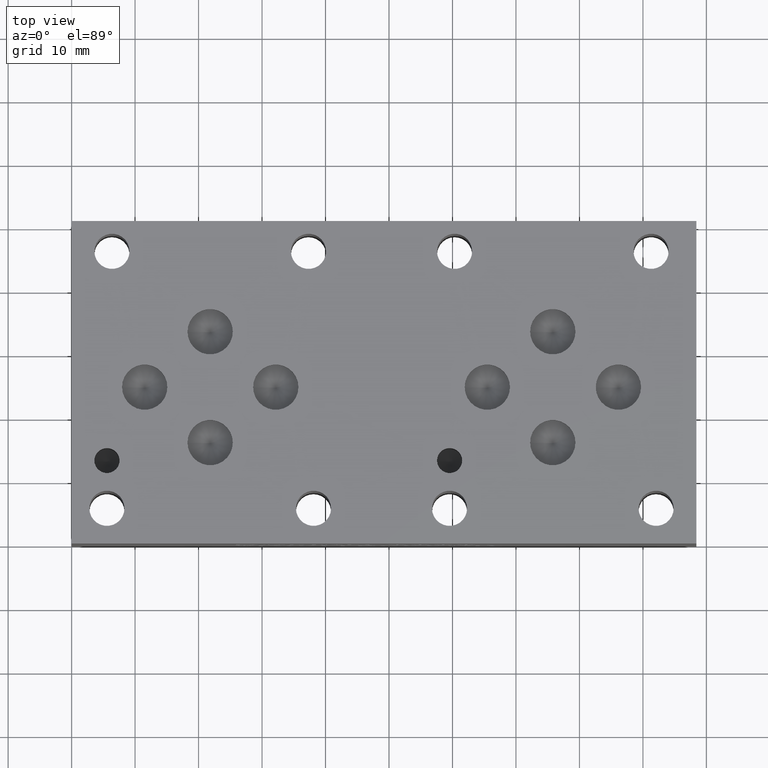
[diagram: clean part render]
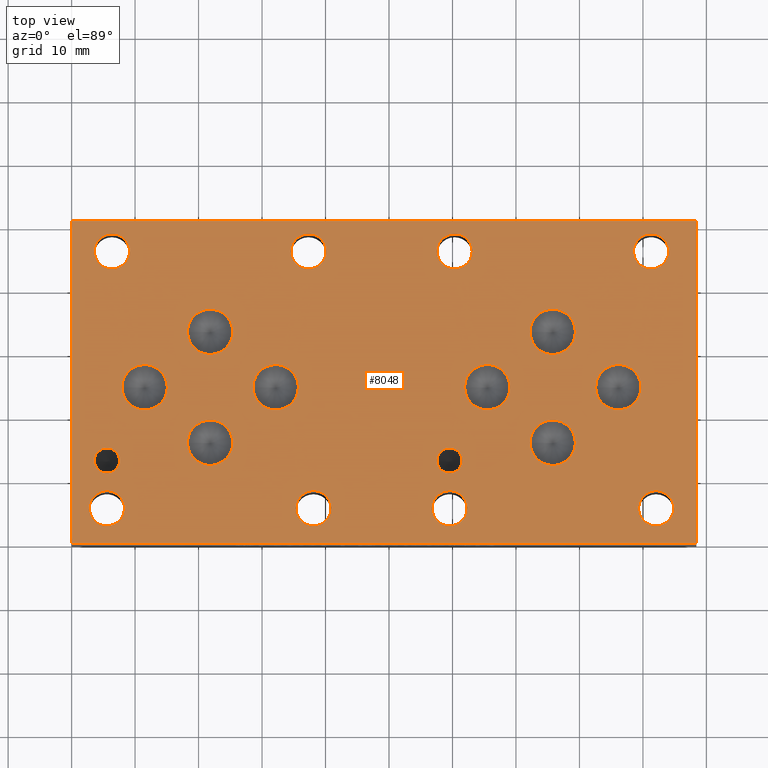
[diagram: same view with one face highlighted and labeled with its STEP entity id]
A machine part, top view. The second image highlights one B-rep face of the part: STEP entity #8048.
In plain terms, the highlighted planar face has unit normal (0, 0, 1).
Its self-contained STEP definition (entity closure, byte-faithful):
#109=CIRCLE('',#8402,2.7686);
#110=CIRCLE('',#8404,2.7686);
#111=CIRCLE('',#8406,2.7686);
#112=CIRCLE('',#8408,2.7686);
#113=CIRCLE('',#8410,2.7686);
#114=CIRCLE('',#8412,2.7686);
#115=CIRCLE('',#8414,2.7686);
#116=CIRCLE('',#8416,2.7686);
#118=CIRCLE('',#8420,3.5687);
#120=CIRCLE('',#8424,3.5687);
#122=CIRCLE('',#8428,3.5687);
#124=CIRCLE('',#8432,3.5687);
#126=CIRCLE('',#8436,3.5687);
#128=CIRCLE('',#8440,3.5687);
#130=CIRCLE('',#8444,3.5687);
#132=CIRCLE('',#8448,3.5687);
#134=CIRCLE('',#8452,1.9812);
#136=CIRCLE('',#8456,1.9812);
#218=FACE_BOUND('',#1445,.T.);
#219=FACE_BOUND('',#1446,.T.);
#220=FACE_BOUND('',#1447,.T.);
#221=FACE_BOUND('',#1448,.T.);
#222=FACE_BOUND('',#1449,.T.);
#223=FACE_BOUND('',#1450,.T.);
#224=FACE_BOUND('',#1451,.T.);
#225=FACE_BOUND('',#1452,.T.);
#226=FACE_BOUND('',#1453,.T.);
#227=FACE_BOUND('',#1454,.T.);
#228=FACE_BOUND('',#1455,.T.);
#229=FACE_BOUND('',#1456,.T.);
#230=FACE_BOUND('',#1457,.T.);
#231=FACE_BOUND('',#1458,.T.);
#232=FACE_BOUND('',#1459,.T.);
#233=FACE_BOUND('',#1460,.T.);
#234=FACE_BOUND('',#1461,.T.);
#235=FACE_BOUND('',#1462,.T.);
#971=FACE_OUTER_BOUND('',#1444,.T.);
#1444=EDGE_LOOP('',(#7034,#7035,#7036,#7037));
#1445=EDGE_LOOP('',(#7038));
#1446=EDGE_LOOP('',(#7039));
#1447=EDGE_LOOP('',(#7040));
#1448=EDGE_LOOP('',(#7041));
#1449=EDGE_LOOP('',(#7042));
#1450=EDGE_LOOP('',(#7043));
#1451=EDGE_LOOP('',(#7044));
#1452=EDGE_LOOP('',(#7045));
#1453=EDGE_LOOP('',(#7046));
#1454=EDGE_LOOP('',(#7047));
#1455=EDGE_LOOP('',(#7048));
#1456=EDGE_LOOP('',(#7049));
#1457=EDGE_LOOP('',(#7050));
#1458=EDGE_LOOP('',(#7051));
#1459=EDGE_LOOP('',(#7052));
#1460=EDGE_LOOP('',(#7053));
#1461=EDGE_LOOP('',(#7054));
#1462=EDGE_LOOP('',(#7055));
#1803=LINE('',#12359,#2596);
#2251=LINE('',#13731,#3044);
#2253=LINE('',#13735,#3046);
#2255=LINE('',#13738,#3048);
#2596=VECTOR('',#8990,10.);
#3044=VECTOR('',#10036,10.);
#3046=VECTOR('',#10040,10.);
#3048=VECTOR('',#10044,10.);
#3403=VERTEX_POINT('',#12356);
#3404=VERTEX_POINT('',#12358);
#3743=VERTEX_POINT('',#13608);
#3744=VERTEX_POINT('',#13612);
#3745=VERTEX_POINT('',#13616);
#3746=VERTEX_POINT('',#13620);
#3747=VERTEX_POINT('',#13624);
#3748=VERTEX_POINT('',#13628);
#3749=VERTEX_POINT('',#13632);
#3750=VERTEX_POINT('',#13636);
#3753=VERTEX_POINT('',#13645);
#3756=VERTEX_POINT('',#13654);
#3759=VERTEX_POINT('',#13663);
#3762=VERTEX_POINT('',#13672);
#3765=VERTEX_POINT('',#13681);
#3768=VERTEX_POINT('',#13690);
#3771=VERTEX_POINT('',#13699);
#3774=VERTEX_POINT('',#13708);
#3777=VERTEX_POINT('',#13717);
#3780=VERTEX_POINT('',#13726);
#3781=VERTEX_POINT('',#13730);
#3782=VERTEX_POINT('',#13734);
#4313=EDGE_CURVE('',#3404,#3403,#1803,.T.);
#4813=EDGE_CURVE('',#3743,#3743,#109,.T.);
#4815=EDGE_CURVE('',#3744,#3744,#110,.T.);
#4817=EDGE_CURVE('',#3745,#3745,#111,.T.);
#4819=EDGE_CURVE('',#3746,#3746,#112,.T.);
#4821=EDGE_CURVE('',#3747,#3747,#113,.T.);
#4823=EDGE_CURVE('',#3748,#3748,#114,.T.);
#4825=EDGE_CURVE('',#3749,#3749,#115,.T.);
#4827=EDGE_CURVE('',#3750,#3750,#116,.T.);
#4831=EDGE_CURVE('',#3753,#3753,#118,.T.);
#4835=EDGE_CURVE('',#3756,#3756,#120,.T.);
#4839=EDGE_CURVE('',#3759,#3759,#122,.T.);
#4843=EDGE_CURVE('',#3762,#3762,#124,.T.);
#4847=EDGE_CURVE('',#3765,#3765,#126,.T.);
#4851=EDGE_CURVE('',#3768,#3768,#128,.T.);
#4855=EDGE_CURVE('',#3771,#3771,#130,.T.);
#4859=EDGE_CURVE('',#3774,#3774,#132,.T.);
#4863=EDGE_CURVE('',#3777,#3777,#134,.T.);
#4867=EDGE_CURVE('',#3780,#3780,#136,.T.);
#4869=EDGE_CURVE('',#3781,#3404,#2251,.T.);
#4871=EDGE_CURVE('',#3782,#3781,#2253,.T.);
#4873=EDGE_CURVE('',#3403,#3782,#2255,.T.);
#7034=ORIENTED_EDGE('',*,*,#4313,.T.);
#7035=ORIENTED_EDGE('',*,*,#4873,.T.);
#7036=ORIENTED_EDGE('',*,*,#4871,.T.);
#7037=ORIENTED_EDGE('',*,*,#4869,.T.);
#7038=ORIENTED_EDGE('',*,*,#4813,.T.);
#7039=ORIENTED_EDGE('',*,*,#4815,.T.);
#7040=ORIENTED_EDGE('',*,*,#4817,.T.);
#7041=ORIENTED_EDGE('',*,*,#4819,.T.);
#7042=ORIENTED_EDGE('',*,*,#4821,.T.);
#7043=ORIENTED_EDGE('',*,*,#4823,.T.);
#7044=ORIENTED_EDGE('',*,*,#4825,.T.);
#7045=ORIENTED_EDGE('',*,*,#4827,.T.);
#7046=ORIENTED_EDGE('',*,*,#4831,.T.);
#7047=ORIENTED_EDGE('',*,*,#4835,.T.);
#7048=ORIENTED_EDGE('',*,*,#4839,.T.);
#7049=ORIENTED_EDGE('',*,*,#4843,.T.);
#7050=ORIENTED_EDGE('',*,*,#4847,.T.);
#7051=ORIENTED_EDGE('',*,*,#4851,.T.);
#7052=ORIENTED_EDGE('',*,*,#4855,.T.);
#7053=ORIENTED_EDGE('',*,*,#4859,.T.);
#7054=ORIENTED_EDGE('',*,*,#4863,.T.);
#7055=ORIENTED_EDGE('',*,*,#4867,.T.);
#7303=PLANE('',#8461);
#8048=ADVANCED_FACE('',(#971,#218,#219,#220,#221,#222,#223,#224,#225,#226,
#227,#228,#229,#230,#231,#232,#233,#234,#235),#7303,.T.);
#8402=AXIS2_PLACEMENT_3D('',#13609,#9896,#9897);
#8404=AXIS2_PLACEMENT_3D('',#13613,#9901,#9902);
#8406=AXIS2_PLACEMENT_3D('',#13617,#9906,#9907);
#8408=AXIS2_PLACEMENT_3D('',#13621,#9911,#9912);
#8410=AXIS2_PLACEMENT_3D('',#13625,#9916,#9917);
#8412=AXIS2_PLACEMENT_3D('',#13629,#9921,#9922);
#8414=AXIS2_PLACEMENT_3D('',#13633,#9926,#9927);
#8416=AXIS2_PLACEMENT_3D('',#13637,#9931,#9932);
#8420=AXIS2_PLACEMENT_3D('',#13646,#9941,#9942);
#8424=AXIS2_PLACEMENT_3D('',#13655,#9951,#9952);
#8428=AXIS2_PLACEMENT_3D('',#13664,#9961,#9962);
#8432=AXIS2_PLACEMENT_3D('',#13673,#9971,#9972);
#8436=AXIS2_PLACEMENT_3D('',#13682,#9981,#9982);
#8440=AXIS2_PLACEMENT_3D('',#13691,#9991,#9992);
#8444=AXIS2_PLACEMENT_3D('',#13700,#10001,#10002);
#8448=AXIS2_PLACEMENT_3D('',#13709,#10011,#10012);
#8452=AXIS2_PLACEMENT_3D('',#13718,#10021,#10022);
#8456=AXIS2_PLACEMENT_3D('',#13727,#10031,#10032);
#8461=AXIS2_PLACEMENT_3D('',#13740,#10047,#10048);
#8990=DIRECTION('',(1.,0.,0.));
#9896=DIRECTION('center_axis',(0.,0.,-1.));
#9897=DIRECTION('ref_axis',(1.,0.,0.));
#9901=DIRECTION('center_axis',(0.,0.,-1.));
#9902=DIRECTION('ref_axis',(1.,0.,0.));
#9906=DIRECTION('center_axis',(0.,0.,-1.));
#9907=DIRECTION('ref_axis',(1.,0.,0.));
#9911=DIRECTION('center_axis',(0.,0.,-1.));
#9912=DIRECTION('ref_axis',(1.,0.,0.));
#9916=DIRECTION('center_axis',(0.,0.,-1.));
#9917=DIRECTION('ref_axis',(1.,0.,0.));
#9921=DIRECTION('center_axis',(0.,0.,-1.));
#9922=DIRECTION('ref_axis',(1.,0.,0.));
#9926=DIRECTION('center_axis',(0.,0.,-1.));
#9927=DIRECTION('ref_axis',(1.,0.,0.));
#9931=DIRECTION('center_axis',(0.,0.,-1.));
#9932=DIRECTION('ref_axis',(1.,0.,0.));
#9941=DIRECTION('center_axis',(0.,0.,-1.));
#9942=DIRECTION('ref_axis',(1.,0.,0.));
#9951=DIRECTION('center_axis',(0.,0.,-1.));
#9952=DIRECTION('ref_axis',(1.,0.,0.));
#9961=DIRECTION('center_axis',(0.,0.,-1.));
#9962=DIRECTION('ref_axis',(1.,0.,0.));
#9971=DIRECTION('center_axis',(0.,0.,-1.));
#9972=DIRECTION('ref_axis',(1.,0.,0.));
#9981=DIRECTION('center_axis',(0.,0.,-1.));
#9982=DIRECTION('ref_axis',(1.,0.,0.));
#9991=DIRECTION('center_axis',(0.,0.,-1.));
#9992=DIRECTION('ref_axis',(1.,0.,0.));
#10001=DIRECTION('center_axis',(0.,0.,-1.));
#10002=DIRECTION('ref_axis',(1.,0.,0.));
#10011=DIRECTION('center_axis',(0.,0.,-1.));
#10012=DIRECTION('ref_axis',(1.,0.,0.));
#10021=DIRECTION('center_axis',(0.,0.,-1.));
#10022=DIRECTION('ref_axis',(1.,0.,0.));
#10031=DIRECTION('center_axis',(0.,0.,-1.));
#10032=DIRECTION('ref_axis',(1.,0.,0.));
#10036=DIRECTION('',(0.,-1.,0.));
#10040=DIRECTION('',(-1.,0.,0.));
#10044=DIRECTION('',(0.,1.,0.));
#10047=DIRECTION('center_axis',(0.,0.,1.));
#10048=DIRECTION('ref_axis',(1.,0.,0.));
#12356=CARTESIAN_POINT('',(98.425,0.,31.75));
#12358=CARTESIAN_POINT('',(0.,0.,31.75));
#12359=CARTESIAN_POINT('',(0.,0.,31.75));
#13608=CARTESIAN_POINT('',(57.56275,46.0248,31.75));
#13609=CARTESIAN_POINT('Origin',(60.33135,46.0248,31.75));
#13612=CARTESIAN_POINT('',(3.58775,46.0248,31.75));
#13613=CARTESIAN_POINT('Origin',(6.35635,46.0248,31.75));
#13616=CARTESIAN_POINT('',(35.33775,5.5372,31.75));
#13617=CARTESIAN_POINT('Origin',(38.10635,5.5372,31.75));
#13620=CARTESIAN_POINT('',(2.794,5.5372,31.75));
#13621=CARTESIAN_POINT('Origin',(5.5626,5.5372,31.75));
#13624=CARTESIAN_POINT('',(56.769,5.5372,31.75));
#13625=CARTESIAN_POINT('Origin',(59.5376,5.5372,31.75));
#13628=CARTESIAN_POINT('',(89.31275,5.5372,31.75));
#13629=CARTESIAN_POINT('Origin',(92.08135,5.5372,31.75));
#13632=CARTESIAN_POINT('',(34.55035,46.0248,31.75));
#13633=CARTESIAN_POINT('Origin',(37.31895,46.0248,31.75));
#13636=CARTESIAN_POINT('',(88.519,46.0248,31.75));
#13637=CARTESIAN_POINT('Origin',(91.2876,46.0248,31.75));
#13645=CARTESIAN_POINT('',(72.2249,33.3502,31.75));
#13646=CARTESIAN_POINT('Origin',(75.7936,33.3502,31.75));
#13654=CARTESIAN_POINT('',(61.9125,24.6126,31.75));
#13655=CARTESIAN_POINT('Origin',(65.4812,24.6126,31.75));
#13663=CARTESIAN_POINT('',(18.2499,33.3502,31.75));
#13664=CARTESIAN_POINT('Origin',(21.8186,33.3502,31.75));
#13672=CARTESIAN_POINT('',(7.9375,24.6126,31.75));
#13673=CARTESIAN_POINT('Origin',(11.5062,24.6126,31.75));
#13681=CARTESIAN_POINT('',(28.5877,24.6126,31.75));
#13682=CARTESIAN_POINT('Origin',(32.1564,24.6126,31.75));
#13690=CARTESIAN_POINT('',(18.2499,15.875,31.75));
#13691=CARTESIAN_POINT('Origin',(21.8186,15.875,31.75));
#13699=CARTESIAN_POINT('',(82.5627,24.6126,31.75));
#13700=CARTESIAN_POINT('Origin',(86.1314,24.6126,31.75));
#13708=CARTESIAN_POINT('',(72.2249,15.875,31.75));
#13709=CARTESIAN_POINT('Origin',(75.7936,15.875,31.75));
#13717=CARTESIAN_POINT('',(3.5814,13.0556,31.75));
#13718=CARTESIAN_POINT('Origin',(5.5626,13.0556,31.75));
#13726=CARTESIAN_POINT('',(57.5564,13.0556,31.75));
#13727=CARTESIAN_POINT('Origin',(59.5376,13.0556,31.75));
#13730=CARTESIAN_POINT('',(0.,50.8,31.75));
#13731=CARTESIAN_POINT('',(0.,50.8,31.75));
#13734=CARTESIAN_POINT('',(98.425,50.8,31.75));
#13735=CARTESIAN_POINT('',(98.425,50.8,31.75));
#13738=CARTESIAN_POINT('',(98.425,0.,31.75));
#13740=CARTESIAN_POINT('Origin',(49.2125,25.4,31.75));